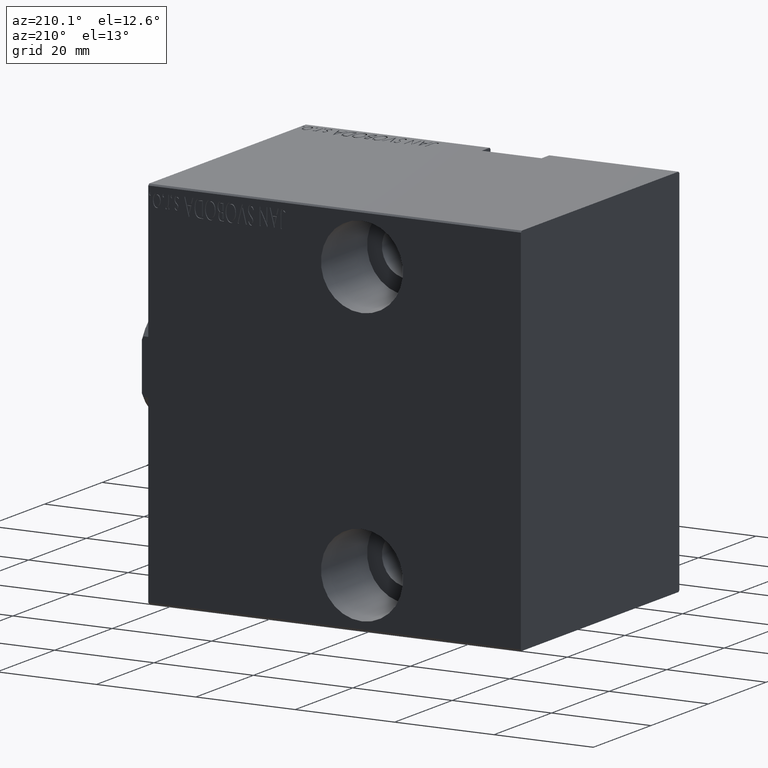
[diagram: clean part render]
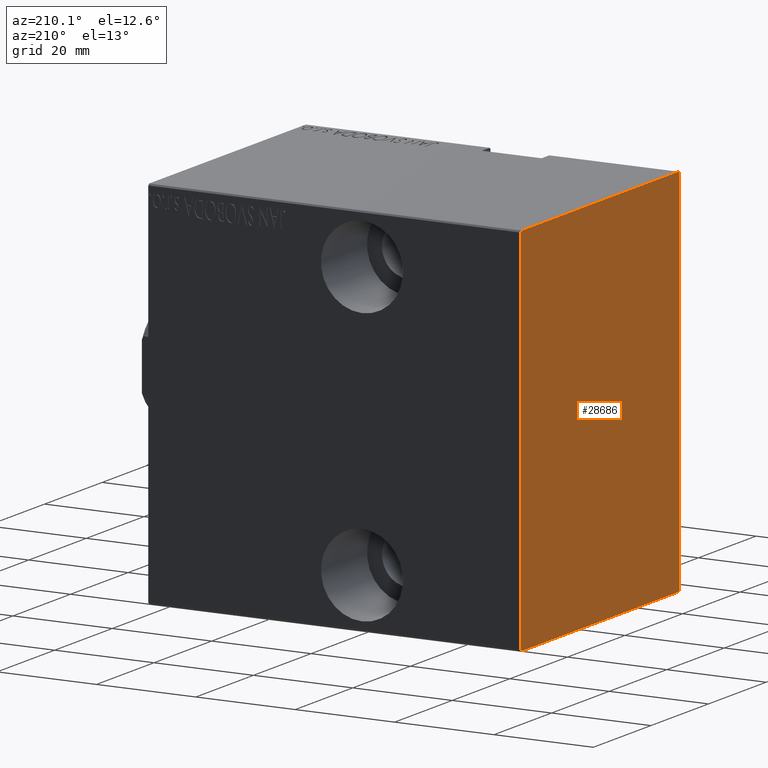
[diagram: same view with one face highlighted and labeled with its STEP entity id]
A machine part, auxiliary view. The second image highlights one B-rep face of the part: STEP entity #28686.
In plain terms, the highlighted planar face has unit normal (-1, 0, 0).
Its self-contained STEP definition (entity closure, byte-faithful):
#562 = LINE ( 'NONE', #13637, #25741 ) ;
#1245 = CARTESIAN_POINT ( 'NONE',  ( 75.00000000000000000, 27.20000000000000284, 37.50000000000000711 ) ) ;
#2655 = CARTESIAN_POINT ( 'NONE',  ( 75.00000000000000000, -27.50000000000000000, -37.19999999999999574 ) ) ;
#3490 = DIRECTION ( 'NONE',  ( 0.000000000000000000, 0.000000000000000000, -1.000000000000000000 ) ) ;
#5224 = CARTESIAN_POINT ( 'NONE',  ( 75.00000000000000000, -27.19999999999999218, -37.50000000000000711 ) ) ;
#6579 = CARTESIAN_POINT ( 'NONE',  ( 75.00000000000000000, -32.34999999999999432, -32.34999999999999432 ) ) ;
#7941 = ORIENTED_EDGE ( 'NONE', *, *, #37060, .T. ) ;
#9391 = FACE_OUTER_BOUND ( 'NONE', #38812, .T. ) ;
#9718 = LINE ( 'NONE', #28646, #29181 ) ;
#10067 = VERTEX_POINT ( 'NONE', #5224 ) ;
#10436 = ORIENTED_EDGE ( 'NONE', *, *, #36537, .T. ) ;
#12604 = PLANE ( 'NONE',  #24970 ) ;
#13637 = CARTESIAN_POINT ( 'NONE',  ( 75.00000000000000000, 32.35000000000016485, -32.34999999999978826 ) ) ;
#14036 = DIRECTION ( 'NONE',  ( 0.000000000000000000, 1.000000000000000000, 0.000000000000000000 ) ) ;
#14084 = DIRECTION ( 'NONE',  ( 0.000000000000000000, -0.7071067811865515695, -0.7071067811865435759 ) ) ;
#14215 = DIRECTION ( 'NONE',  ( -0.000000000000000000, -0.7071067811865474617, 0.7071067811865474617 ) ) ;
#14465 = VERTEX_POINT ( 'NONE', #1245 ) ;
#16002 = VECTOR ( 'NONE', #14084, 999.9999999999998863 ) ;
#16479 = LINE ( 'NONE', #29602, #16002 ) ;
#16525 = VECTOR ( 'NONE', #14036, 1000.000000000000000 ) ;
#17108 = ORIENTED_EDGE ( 'NONE', *, *, #38988, .T. ) ;
#19410 = EDGE_CURVE ( 'NONE', #36307, #25664, #29080, .T. ) ;
#19609 = ORIENTED_EDGE ( 'NONE', *, *, #19410, .T. ) ;
#20003 = EDGE_CURVE ( 'NONE', #10067, #27642, #30387, .T. ) ;
#20698 = CARTESIAN_POINT ( 'NONE',  ( 75.00000000000000000, -27.50000000000000000, -37.50000000000000711 ) ) ;
#21314 = LINE ( 'NONE', #34017, #24401 ) ;
#22215 = CARTESIAN_POINT ( 'NONE',  ( 75.00000000000000000, -27.20000000000000284, 37.49999999999999289 ) ) ;
#22686 = LINE ( 'NONE', #6579, #33072 ) ;
#22688 = EDGE_CURVE ( 'NONE', #25664, #10067, #22686, .T. ) ;
#22917 = DIRECTION ( 'NONE',  ( 0.000000000000000000, 0.000000000000000000, -1.000000000000000000 ) ) ;
#23541 = CARTESIAN_POINT ( 'NONE',  ( 75.00000000000000000, 27.50000000000000355, -37.50000000000000711 ) ) ;
#23576 = CARTESIAN_POINT ( 'NONE',  ( 75.00000000000000000, 27.19999999999999929, -37.50000000000000711 ) ) ;
#24401 = VECTOR ( 'NONE', #14215, 1000.000000000000114 ) ;
#24970 = AXIS2_PLACEMENT_3D ( 'NONE', #36034, #33021, #22917 ) ;
#25664 = VERTEX_POINT ( 'NONE', #2655 ) ;
#25741 = VECTOR ( 'NONE', #26773, 1000.000000000000000 ) ;
#25854 = CARTESIAN_POINT ( 'NONE',  ( 75.00000000000000000, -27.50000000000000000, 37.49999999999999289 ) ) ;
#26773 = DIRECTION ( 'NONE',  ( -0.000000000000000000, 0.7071067811865434649, 0.7071067811865516806 ) ) ;
#27050 = VERTEX_POINT ( 'NONE', #37596 ) ;
#27513 = CARTESIAN_POINT ( 'NONE',  ( 75.00000000000000000, -27.50000000000000000, 37.19999999999999574 ) ) ;
#27642 = VERTEX_POINT ( 'NONE', #23576 ) ;
#28646 = CARTESIAN_POINT ( 'NONE',  ( 75.00000000000000000, 27.49999999999999645, 37.50000000000000711 ) ) ;
#28686 = ADVANCED_FACE ( 'NONE', ( #9391 ), #12604, .T. ) ;
#29080 = LINE ( 'NONE', #25854, #30237 ) ;
#29181 = VECTOR ( 'NONE', #41765, 1000.000000000000000 ) ;
#29602 = CARTESIAN_POINT ( 'NONE',  ( 75.00000000000000000, -32.34999999999983800, 32.35000000000021458 ) ) ;
#30237 = VECTOR ( 'NONE', #3490, 1000.000000000000000 ) ;
#30387 = LINE ( 'NONE', #20698, #16525 ) ;
#30692 = VERTEX_POINT ( 'NONE', #35674 ) ;
#30846 = LINE ( 'NONE', #23541, #36050 ) ;
#31032 = EDGE_CURVE ( 'NONE', #35139, #36307, #16479, .T. ) ;
#32137 = ORIENTED_EDGE ( 'NONE', *, *, #31032, .T. ) ;
#33021 = DIRECTION ( 'NONE',  ( 1.000000000000000000, 0.000000000000000000, 0.000000000000000000 ) ) ;
#33072 = VECTOR ( 'NONE', #35584, 1000.000000000000114 ) ;
#34017 = CARTESIAN_POINT ( 'NONE',  ( 75.00000000000000000, 32.35000000000000142, 32.35000000000000142 ) ) ;
#35139 = VERTEX_POINT ( 'NONE', #22215 ) ;
#35584 = DIRECTION ( 'NONE',  ( -0.000000000000000000, 0.7071067811865474617, -0.7071067811865474617 ) ) ;
#35674 = CARTESIAN_POINT ( 'NONE',  ( 75.00000000000000000, 27.49999999999999645, 37.20000000000000995 ) ) ;
#36034 = CARTESIAN_POINT ( 'NONE',  ( 75.00000000000000000, 0.000000000000000000, 0.000000000000000000 ) ) ;
#36050 = VECTOR ( 'NONE', #40745, 1000.000000000000000 ) ;
#36307 = VERTEX_POINT ( 'NONE', #27513 ) ;
#36537 = EDGE_CURVE ( 'NONE', #27050, #30692, #30846, .T. ) ;
#36619 = EDGE_CURVE ( 'NONE', #27642, #27050, #562, .T. ) ;
#37060 = EDGE_CURVE ( 'NONE', #14465, #35139, #9718, .T. ) ;
#37596 = CARTESIAN_POINT ( 'NONE',  ( 75.00000000000000000, 27.50000000000000355, -37.19999999999999574 ) ) ;
#38006 = ORIENTED_EDGE ( 'NONE', *, *, #22688, .T. ) ;
#38731 = ORIENTED_EDGE ( 'NONE', *, *, #36619, .T. ) ;
#38812 = EDGE_LOOP ( 'NONE', ( #42134, #38731, #10436, #17108, #7941, #32137, #19609, #38006 ) ) ;
#38988 = EDGE_CURVE ( 'NONE', #30692, #14465, #21314, .T. ) ;
#40745 = DIRECTION ( 'NONE',  ( 0.000000000000000000, -9.251858538542970348E-17, 1.000000000000000000 ) ) ;
#41765 = DIRECTION ( 'NONE',  ( 0.000000000000000000, -1.000000000000000000, -2.523234146875355998E-16 ) ) ;
#42134 = ORIENTED_EDGE ( 'NONE', *, *, #20003, .T. ) ;